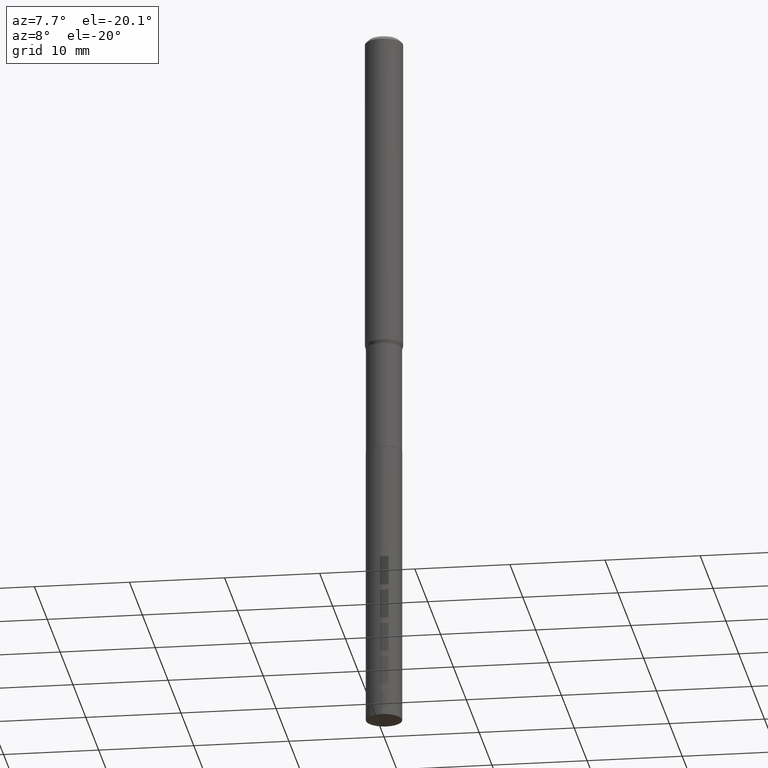
[diagram: clean part render]
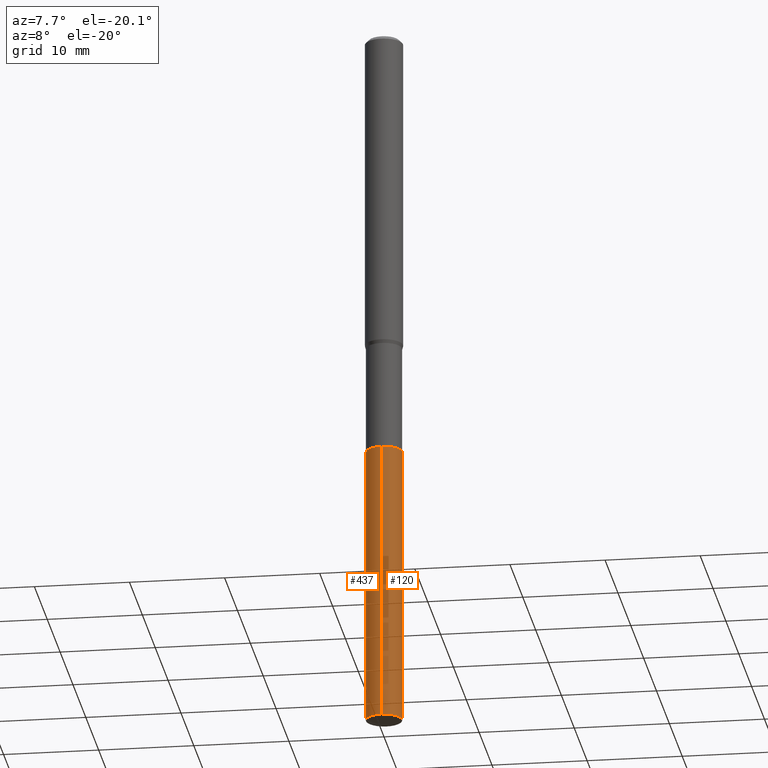
[diagram: same view with one multi-face feature highlighted, each face labeled with its STEP entity id]
A machine part, auxiliary view. The highlighted faces form ONE feature: a constant-radius fillet chain: 2 tangent blend faces with common blend radius 1.8999 mm. The faces share edges in the B-rep.
Their STEP definitions:
[1] entity #120 (Cylinder):
#14 = ORIENTED_EDGE ( 'NONE', *, *, #178, .F. ) ;
#24 = AXIS2_PLACEMENT_3D ( 'NONE', #238, #187, #420 ) ;
#33 = CARTESIAN_POINT ( 'NONE',  ( 5.314859663485988576E-16, 0.07479999999999373261, -1.795300000000000118 ) ) ;
#35 = CARTESIAN_POINT ( 'NONE',  ( -5.223256082908888214E-16, -0.07480000000000626426, -1.795299999999999452 ) ) ;
#41 = CARTESIAN_POINT ( 'NONE',  ( 4.390350147744175110E-29, -6.268256447625098416E-15, -1.795299999999999896 ) ) ;
#42 = ORIENTED_EDGE ( 'NONE', *, *, #328, .T. ) ;
#69 = VECTOR ( 'NONE', #315, 39.37007874015748143 ) ;
#79 = LINE ( 'NONE', #33, #69 ) ;
#95 = ORIENTED_EDGE ( 'NONE', *, *, #235, .F. ) ;
#107 = FACE_OUTER_BOUND ( 'NONE', #386, .T. ) ;
#111 = CARTESIAN_POINT ( 'NONE',  ( 5.314859663486276510E-16, 0.07479999999999373261, -1.795300000000000118 ) ) ;
#120 = ADVANCED_FACE ( 'NONE', ( #107 ), #457, .T. ) ;
#126 = VERTEX_POINT ( 'NONE', #312 ) ;
#159 = ORIENTED_EDGE ( 'NONE', *, *, #171, .T. ) ;
#166 = CIRCLE ( 'NONE', #24, 0.07480000000000000537 ) ;
#171 = EDGE_CURVE ( 'NONE', #314, #444, #79, .T. ) ;
#172 = DIRECTION ( 'NONE',  ( -2.445469532295098656E-29, 3.491480299012352095E-15, 1.000000000000000000 ) ) ;
#175 = CARTESIAN_POINT ( 'NONE',  ( -5.223256082908604224E-16, -0.07480000000001037208, -2.964875026476887943 ) ) ;
#178 = EDGE_CURVE ( 'NONE', #416, #126, #287, .T. ) ;
#184 = DIRECTION ( 'NONE',  ( -2.445469532295098656E-29, 3.491480299012352095E-15, 1.000000000000000000 ) ) ;
#186 = AXIS2_PLACEMENT_3D ( 'NONE', #217, #172, #254 ) ;
#187 = DIRECTION ( 'NONE',  ( -2.445469532295098656E-29, 3.491480299012352095E-15, 1.000000000000000000 ) ) ;
#194 = CARTESIAN_POINT ( 'NONE',  ( 5.314859663486275524E-16, 0.07479999999998968030, -2.964875026476887943 ) ) ;
#213 = CIRCLE ( 'NONE', #483, 0.07480000000000000537 ) ;
#217 = CARTESIAN_POINT ( 'NONE',  ( 4.390350147744175110E-29, -6.268256447625098416E-15, -1.795299999999999896 ) ) ;
#235 = EDGE_CURVE ( 'NONE', #126, #444, #213, .T. ) ;
#238 = CARTESIAN_POINT ( 'NONE',  ( 7.250510240726639797E-29, -1.035180461078600509E-14, -2.964875026476887943 ) ) ;
#254 = DIRECTION ( 'NONE',  ( -6.982962677686265922E-15, -1.000000000000000000, 3.652203200085913145E-15 ) ) ;
#287 = LINE ( 'NONE', #35, #428 ) ;
#312 = CARTESIAN_POINT ( 'NONE',  ( -5.223256082908888214E-16, -0.07480000000000626426, -1.795299999999999452 ) ) ;
#314 = VERTEX_POINT ( 'NONE', #194 ) ;
#315 = DIRECTION ( 'NONE',  ( -2.445469532295098656E-29, 3.491480299012352095E-15, 1.000000000000000000 ) ) ;
#328 = EDGE_CURVE ( 'NONE', #416, #314, #166, .T. ) ;
#329 = DIRECTION ( 'NONE',  ( -2.445469532295098656E-29, 3.491480299012352095E-15, 1.000000000000000000 ) ) ;
#386 = EDGE_LOOP ( 'NONE', ( #42, #159, #95, #14 ) ) ;
#416 = VERTEX_POINT ( 'NONE', #175 ) ;
#418 = DIRECTION ( 'NONE',  ( -6.982962677686265922E-15, -1.000000000000000000, 3.652203200085913145E-15 ) ) ;
#420 = DIRECTION ( 'NONE',  ( -6.982962677686265922E-15, -1.000000000000000000, 0.000000000000000000 ) ) ;
#428 = VECTOR ( 'NONE', #329, 39.37007874015748143 ) ;
#444 = VERTEX_POINT ( 'NONE', #111 ) ;
#457 = CYLINDRICAL_SURFACE ( 'NONE', #186, 0.07480000000000000537 ) ;
#483 = AXIS2_PLACEMENT_3D ( 'NONE', #41, #184, #418 ) ;
[2] entity #437 (Cylinder):
#13 = CIRCLE ( 'NONE', #37, 0.07480000000000000537 ) ;
#33 = CARTESIAN_POINT ( 'NONE',  ( 5.314859663485988576E-16, 0.07479999999999373261, -1.795300000000000118 ) ) ;
#35 = CARTESIAN_POINT ( 'NONE',  ( -5.223256082908888214E-16, -0.07480000000000626426, -1.795299999999999452 ) ) ;
#37 = AXIS2_PLACEMENT_3D ( 'NONE', #477, #408, #397 ) ;
#69 = VECTOR ( 'NONE', #315, 39.37007874015748143 ) ;
#71 = DIRECTION ( 'NONE',  ( -2.445469532295098656E-29, 3.491480299012352095E-15, 1.000000000000000000 ) ) ;
#79 = LINE ( 'NONE', #33, #69 ) ;
#87 = ORIENTED_EDGE ( 'NONE', *, *, #171, .F. ) ;
#90 = ORIENTED_EDGE ( 'NONE', *, *, #362, .T. ) ;
#91 = DIRECTION ( 'NONE',  ( -2.445469532295098656E-29, 3.491480299012352095E-15, 1.000000000000000000 ) ) ;
#111 = CARTESIAN_POINT ( 'NONE',  ( 5.314859663486276510E-16, 0.07479999999999373261, -1.795300000000000118 ) ) ;
#126 = VERTEX_POINT ( 'NONE', #312 ) ;
#143 = DIRECTION ( 'NONE',  ( -6.982962677686265922E-15, -1.000000000000000000, 3.652203200085913145E-15 ) ) ;
#160 = EDGE_LOOP ( 'NONE', ( #87, #90, #309, #453 ) ) ;
#171 = EDGE_CURVE ( 'NONE', #314, #444, #79, .T. ) ;
#175 = CARTESIAN_POINT ( 'NONE',  ( -5.223256082908604224E-16, -0.07480000000001037208, -2.964875026476887943 ) ) ;
#178 = EDGE_CURVE ( 'NONE', #416, #126, #287, .T. ) ;
#194 = CARTESIAN_POINT ( 'NONE',  ( 5.314859663486275524E-16, 0.07479999999998968030, -2.964875026476887943 ) ) ;
#228 = CARTESIAN_POINT ( 'NONE',  ( 4.390350147744175110E-29, -6.268256447625098416E-15, -1.795299999999999896 ) ) ;
#246 = AXIS2_PLACEMENT_3D ( 'NONE', #487, #71, #143 ) ;
#287 = LINE ( 'NONE', #35, #428 ) ;
#289 = FACE_OUTER_BOUND ( 'NONE', #160, .T. ) ;
#305 = DIRECTION ( 'NONE',  ( -6.982962677686265922E-15, -1.000000000000000000, 3.652203200085913145E-15 ) ) ;
#309 = ORIENTED_EDGE ( 'NONE', *, *, #178, .T. ) ;
#312 = CARTESIAN_POINT ( 'NONE',  ( -5.223256082908888214E-16, -0.07480000000000626426, -1.795299999999999452 ) ) ;
#314 = VERTEX_POINT ( 'NONE', #194 ) ;
#315 = DIRECTION ( 'NONE',  ( -2.445469532295098656E-29, 3.491480299012352095E-15, 1.000000000000000000 ) ) ;
#323 = EDGE_CURVE ( 'NONE', #444, #126, #330, .T. ) ;
#329 = DIRECTION ( 'NONE',  ( -2.445469532295098656E-29, 3.491480299012352095E-15, 1.000000000000000000 ) ) ;
#330 = CIRCLE ( 'NONE', #401, 0.07480000000000000537 ) ;
#362 = EDGE_CURVE ( 'NONE', #314, #416, #13, .T. ) ;
#397 = DIRECTION ( 'NONE',  ( -6.982962677686265922E-15, -1.000000000000000000, 0.000000000000000000 ) ) ;
#400 = CYLINDRICAL_SURFACE ( 'NONE', #246, 0.07480000000000000537 ) ;
#401 = AXIS2_PLACEMENT_3D ( 'NONE', #228, #91, #305 ) ;
#408 = DIRECTION ( 'NONE',  ( -2.445469532295098656E-29, 3.491480299012352095E-15, 1.000000000000000000 ) ) ;
#416 = VERTEX_POINT ( 'NONE', #175 ) ;
#428 = VECTOR ( 'NONE', #329, 39.37007874015748143 ) ;
#437 = ADVANCED_FACE ( 'NONE', ( #289 ), #400, .T. ) ;
#444 = VERTEX_POINT ( 'NONE', #111 ) ;
#453 = ORIENTED_EDGE ( 'NONE', *, *, #323, .F. ) ;
#477 = CARTESIAN_POINT ( 'NONE',  ( 7.250510240726639797E-29, -1.035180461078600509E-14, -2.964875026476887943 ) ) ;
#487 = CARTESIAN_POINT ( 'NONE',  ( 4.390350147744175110E-29, -6.268256447625098416E-15, -1.795299999999999896 ) ) ;